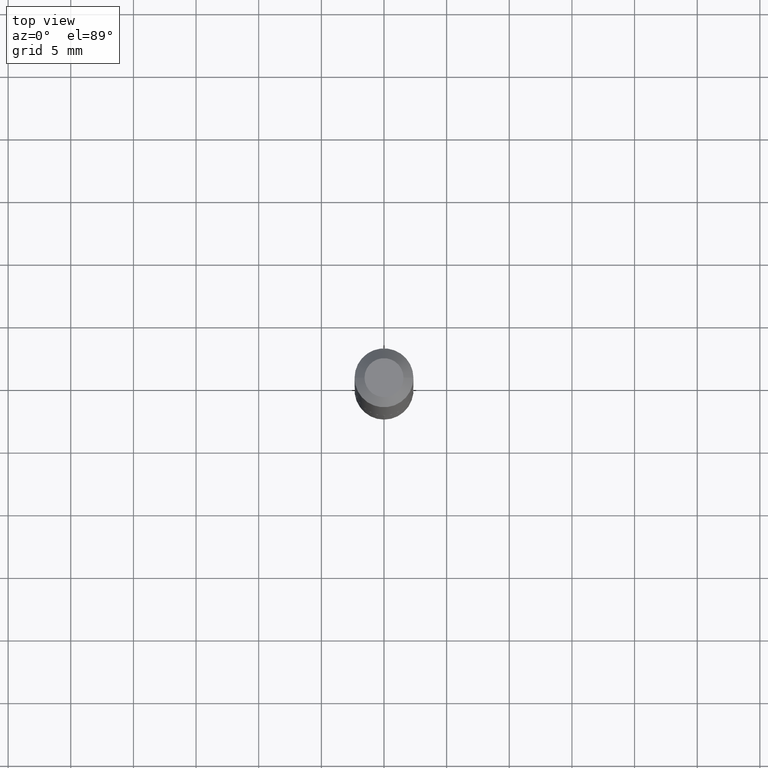
[diagram: clean part render]
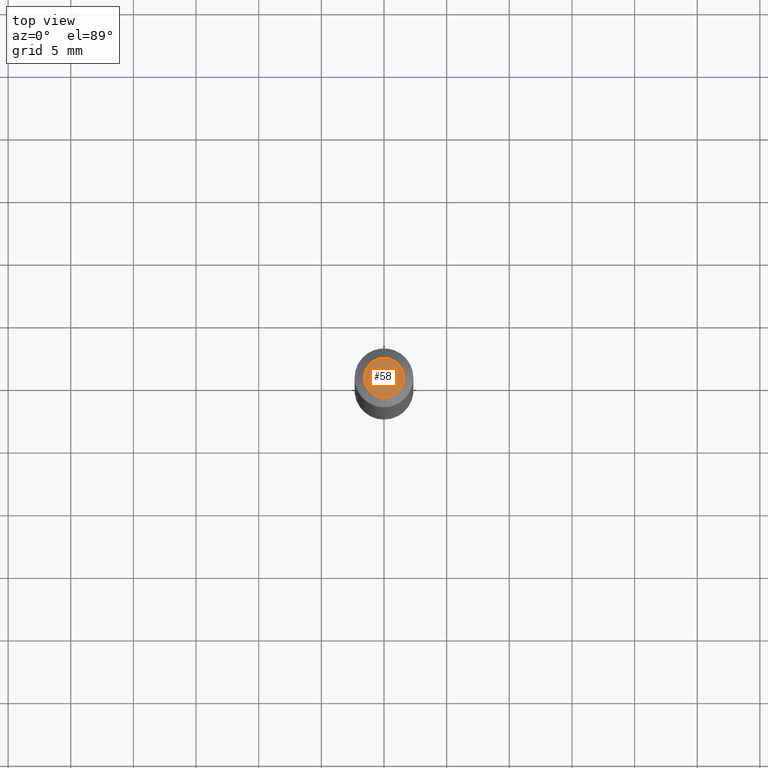
[diagram: same view with one face highlighted and labeled with its STEP entity id]
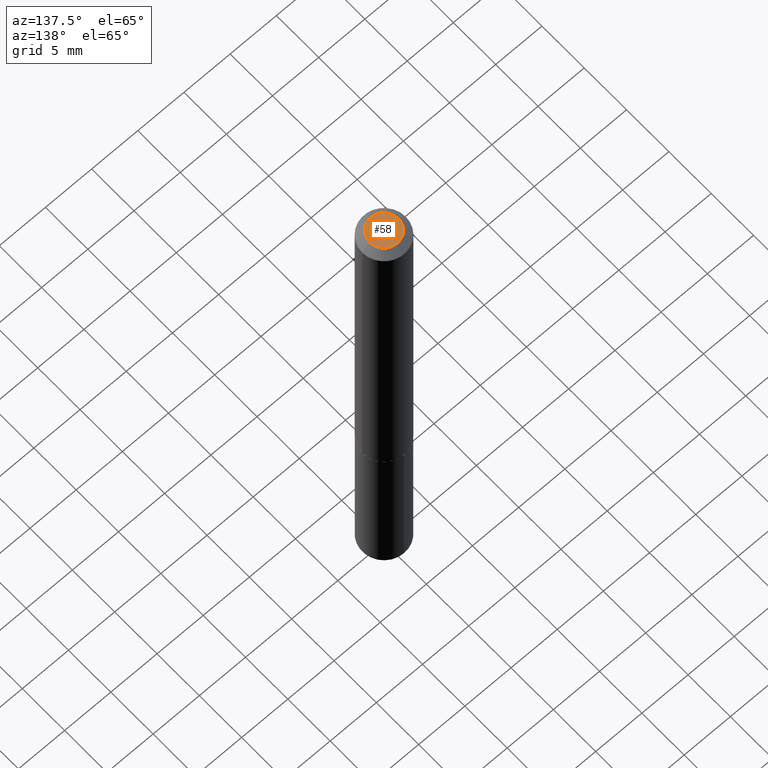
[diagram: same view with one face highlighted and labeled with its STEP entity id]
A machine part, top view. The second image highlights one B-rep face of the part: STEP entity #58.
A second angle (auxiliary view) of the same face is appended — the face is thin or edge-on in the first view.
In plain terms, the highlighted planar face has unit normal (0, -0, -1).
Its self-contained STEP definition (entity closure, byte-faithful):
#1 = DIRECTION ( 'NONE',  ( -2.445468806185136597E-29, 3.491481338843145583E-15, 1.000000000000000000 ) ) ;
#25 = FACE_OUTER_BOUND ( 'NONE', #155, .T. ) ;
#52 = EDGE_CURVE ( 'NONE', #302, #160, #238, .T. ) ;
#58 = ADVANCED_FACE ( 'NONE', ( #25 ), #220, .F. ) ;
#72 = CARTESIAN_POINT ( 'NONE',  ( -5.839929314523210657E-48, 8.337871319499132076E-34, 2.388061258337348585E-19 ) ) ;
#76 = AXIS2_PLACEMENT_3D ( 'NONE', #72, #135, #190 ) ;
#85 = CARTESIAN_POINT ( 'NONE',  ( 0.06125000000000000583, -5.819551794981109879E-16, 2.388061258372646066E-19 ) ) ;
#106 = ORIENTED_EDGE ( 'NONE', *, *, #52, .T. ) ;
#109 = DIRECTION ( 'NONE',  ( 2.438088387897960049E-29, -3.491481338843145188E-15, -1.000000000000000000 ) ) ;
#135 = DIRECTION ( 'NONE',  ( -2.445468806185136597E-29, 3.491481338843145583E-15, 1.000000000000000000 ) ) ;
#138 = DIRECTION ( 'NONE',  ( -1.000000000000000000, 6.982962677686265922E-15, -4.876176775795935793E-29 ) ) ;
#152 = EDGE_CURVE ( 'NONE', #160, #302, #288, .T. ) ;
#155 = EDGE_LOOP ( 'NONE', ( #182, #106 ) ) ;
#160 = VERTEX_POINT ( 'NONE', #280 ) ;
#182 = ORIENTED_EDGE ( 'NONE', *, *, #152, .T. ) ;
#190 = DIRECTION ( 'NONE',  ( 1.000000000000000000, -6.982962677686267499E-15, 4.876190086226892022E-29 ) ) ;
#220 = PLANE ( 'NONE',  #297 ) ;
#238 = CIRCLE ( 'NONE', #76, 0.06125000000000000583 ) ;
#262 = DIRECTION ( 'NONE',  ( 1.000000000000000000, -6.982962677686267499E-15, 4.876190086226892022E-29 ) ) ;
#280 = CARTESIAN_POINT ( 'NONE',  ( -0.06125000000000000583, 4.822608599277073214E-16, 2.388061258305531741E-19 ) ) ;
#288 = CIRCLE ( 'NONE', #340, 0.06125000000000000583 ) ;
#297 = AXIS2_PLACEMENT_3D ( 'NONE', #330, #109, #138 ) ;
#302 = VERTEX_POINT ( 'NONE', #85 ) ;
#330 = CARTESIAN_POINT ( 'NONE',  ( -2.919964657261605329E-48, 4.168935659749566038E-34, 1.194030629168674292E-19 ) ) ;
#340 = AXIS2_PLACEMENT_3D ( 'NONE', #350, #1, #262 ) ;
#350 = CARTESIAN_POINT ( 'NONE',  ( -5.839929314523210657E-48, 8.337871319499132076E-34, 2.388061258337348585E-19 ) ) ;